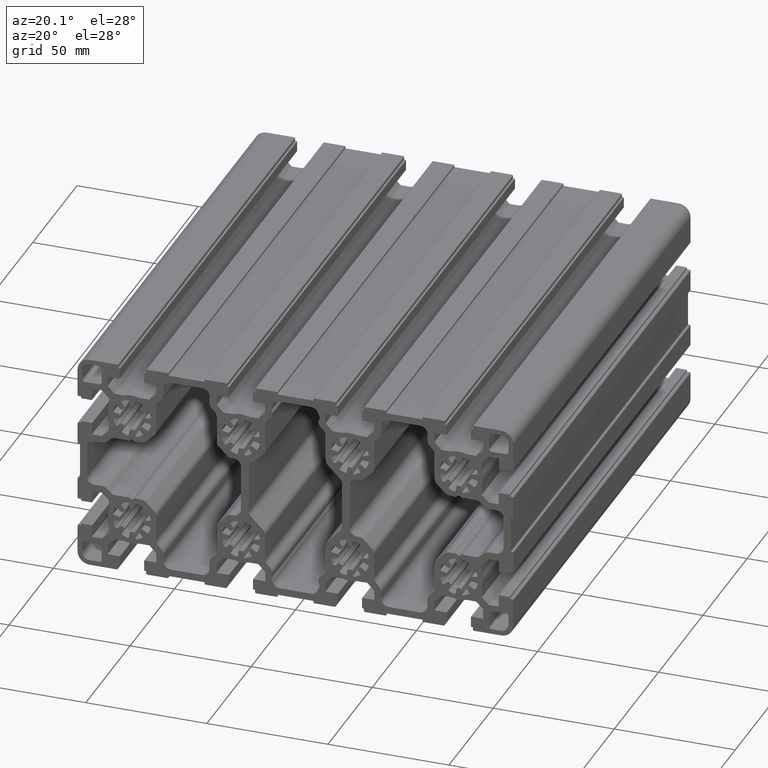
[diagram: clean part render]
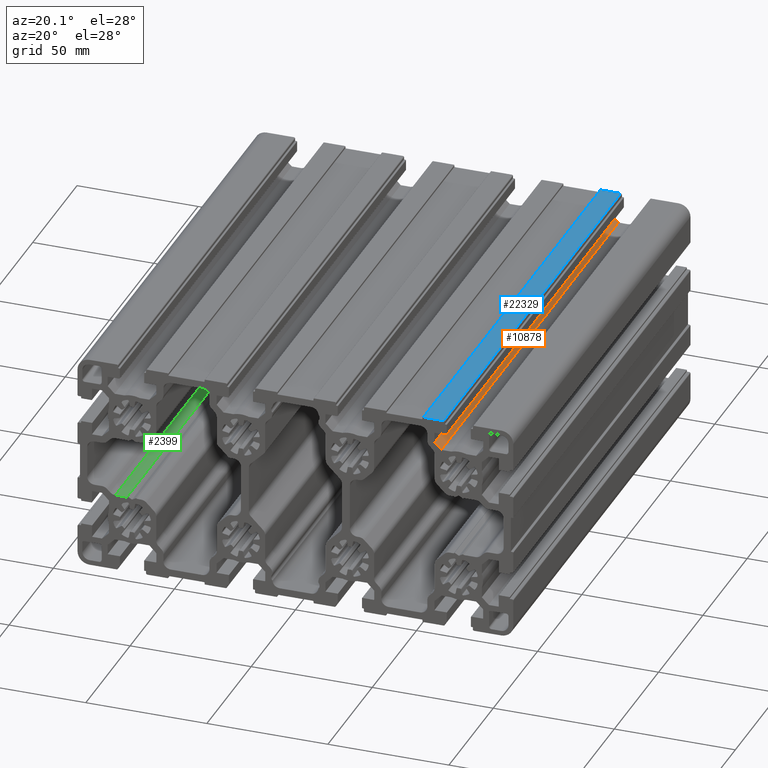
[diagram: same view with three faces highlighted in distinct colors, each labeled with its STEP entity id]
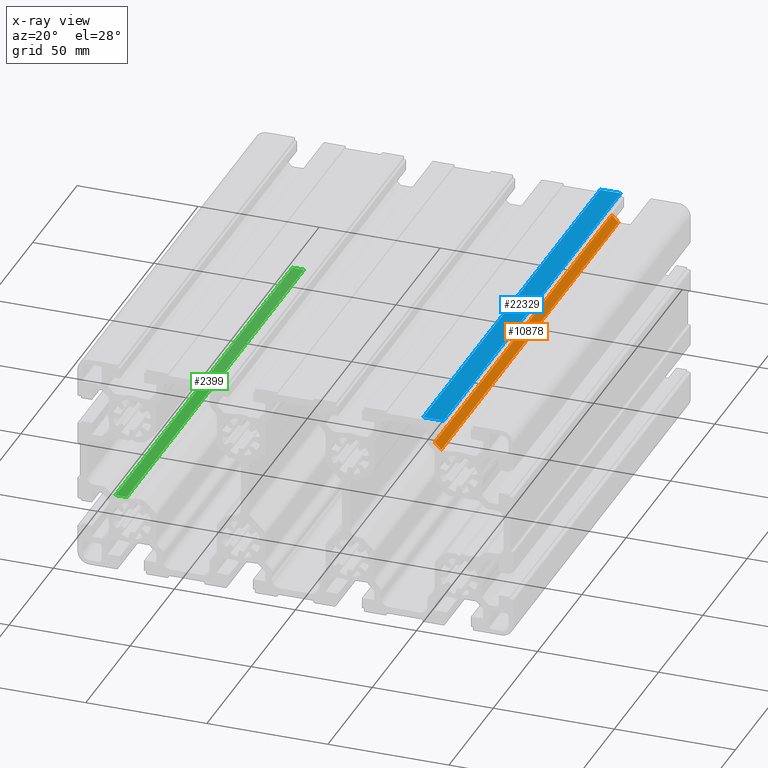
[diagram: x-ray of the same camera — body ghosted, the three highlighted faces saturated]
A machine part, auxiliary view with three faces highlighted in distinct colors.
The next image is the same camera in x-ray (body ghosted, the three faces saturated) — at least one of them is partly hidden behind the body in this view.
Their STEP definitions:

[orange] entity #10878 — the highlighted planar face has unit normal (0.7071, -0, 0.7071).
#692 = ORIENTED_EDGE ( 'NONE', *, *, #9807, .T. ) ;
#1874 = CARTESIAN_POINT ( 'NONE',  ( 57.50857864376262500, 0.0000000000000000000, 34.82487373415277400 ) ) ;
#2531 = CARTESIAN_POINT ( 'NONE',  ( 57.50857864376259700, 0.0000000000000000000, 34.82487373415280300 ) ) ;
#5668 = VERTEX_POINT ( 'NONE', #1874 ) ;
#9807 = EDGE_CURVE ( 'NONE', #26904, #19057, #29485, .T. ) ;
#10484 = EDGE_LOOP ( 'NONE', ( #32046, #692, #18143, #20376 ) ) ;
#10624 = CARTESIAN_POINT ( 'NONE',  ( 57.50857864376262500, 200.0000000000000000, 34.82487373415277400 ) ) ;
#10659 = VECTOR ( 'NONE', #17378, 1000.000000000000000 ) ;
#10878 = ADVANCED_FACE ( 'NONE', ( #11793 ), #12242, .T. ) ;
#11203 = VERTEX_POINT ( 'NONE', #10624 ) ;
#11793 = FACE_OUTER_BOUND ( 'NONE', #10484, .T. ) ;
#12242 = PLANE ( 'NONE',  #31401 ) ;
#13588 = DIRECTION ( 'NONE',  ( 0.0000000000000000000, 1.000000000000000000, 0.0000000000000000000 ) ) ;
#14198 = CARTESIAN_POINT ( 'NONE',  ( 57.50857864376259700, 0.0000000000000000000, 34.82487373415280300 ) ) ;
#14732 = CARTESIAN_POINT ( 'NONE',  ( 57.50857864376259700, 200.0000000000000000, 34.82487373415280300 ) ) ;
#16880 = LINE ( 'NONE', #14198, #10659 ) ;
#16969 = LINE ( 'NONE', #2531, #21118 ) ;
#17378 = DIRECTION ( 'NONE',  ( 0.7071067811865730000, 0.0000000000000000000, -0.7071067811865220400 ) ) ;
#18143 = ORIENTED_EDGE ( 'NONE', *, *, #40166, .F. ) ;
#19057 = VERTEX_POINT ( 'NONE', #25586 ) ;
#20376 = ORIENTED_EDGE ( 'NONE', *, *, #35084, .T. ) ;
#21118 = VECTOR ( 'NONE', #42231, 1000.000000000000000 ) ;
#25586 = CARTESIAN_POINT ( 'NONE',  ( 60.27487373415289800, 200.0000000000000000, 32.05857864376270100 ) ) ;
#26085 = LINE ( 'NONE', #14732, #28176 ) ;
#26904 = VERTEX_POINT ( 'NONE', #30715 ) ;
#28176 = VECTOR ( 'NONE', #38006, 1000.000000000000000 ) ;
#28477 = CARTESIAN_POINT ( 'NONE',  ( 57.50857864376259700, 0.0000000000000000000, 34.82487373415280300 ) ) ;
#29137 = EDGE_CURVE ( 'NONE', #5668, #26904, #16880, .T. ) ;
#29485 = LINE ( 'NONE', #29544, #38893 ) ;
#29544 = CARTESIAN_POINT ( 'NONE',  ( 60.27487373415289800, 0.0000000000000000000, 32.05857864376270100 ) ) ;
#30715 = CARTESIAN_POINT ( 'NONE',  ( 60.27487373415289800, 0.0000000000000000000, 32.05857864376270100 ) ) ;
#31401 = AXIS2_PLACEMENT_3D ( 'NONE', #28477, #31841, #35484 ) ;
#31841 = DIRECTION ( 'NONE',  ( 0.7071067811865220400, -0.0000000000000000000, 0.7071067811865730000 ) ) ;
#32046 = ORIENTED_EDGE ( 'NONE', *, *, #29137, .T. ) ;
#35084 = EDGE_CURVE ( 'NONE', #11203, #5668, #16969, .T. ) ;
#35484 = DIRECTION ( 'NONE',  ( 0.7071067811865730000, 0.0000000000000000000, -0.7071067811865220400 ) ) ;
#38006 = DIRECTION ( 'NONE',  ( 0.7071067811865732200, 0.0000000000000000000, -0.7071067811865218200 ) ) ;
#38893 = VECTOR ( 'NONE', #13588, 1000.000000000000000 ) ;
#40166 = EDGE_CURVE ( 'NONE', #11203, #19057, #26085, .T. ) ;
#42231 = DIRECTION ( 'NONE',  ( -0.0000000000000000000, -1.000000000000000000, -0.0000000000000000000 ) ) ;

[blue] entity #22329 — the highlighted planar face has unit normal (-0, 0, 1).
#835 = CARTESIAN_POINT ( 'NONE',  ( 8.881784197001250700E-015, 200.0000000000000000, 45.00000000000000000 ) ) ;
#920 = VECTOR ( 'NONE', #8093, 1000.000000000000000 ) ;
#2753 = VERTEX_POINT ( 'NONE', #38414 ) ;
#3927 = CARTESIAN_POINT ( 'NONE',  ( 61.20000000000000300, 0.0000000000000000000, 45.00000000000000700 ) ) ;
#6059 = EDGE_CURVE ( 'NONE', #34863, #2753, #25826, .T. ) ;
#6434 = CARTESIAN_POINT ( 'NONE',  ( 52.79999999999999700, 0.0000000000000000000, 45.00000000000000000 ) ) ;
#6878 = EDGE_CURVE ( 'NONE', #40988, #2753, #34170, .T. ) ;
#7309 = FACE_OUTER_BOUND ( 'NONE', #41863, .T. ) ;
#8093 = DIRECTION ( 'NONE',  ( 1.000000000000000000, 0.0000000000000000000, -0.0000000000000000000 ) ) ;
#8792 = DIRECTION ( 'NONE',  ( 0.0000000000000000000, 1.000000000000000000, -0.0000000000000000000 ) ) ;
#9952 = DIRECTION ( 'NONE',  ( 1.000000000000000000, 0.0000000000000000000, 1.057355261547770100E-015 ) ) ;
#13764 = ORIENTED_EDGE ( 'NONE', *, *, #15919, .T. ) ;
#14737 = AXIS2_PLACEMENT_3D ( 'NONE', #19728, #23098, #26419 ) ;
#15919 = EDGE_CURVE ( 'NONE', #40988, #22212, #25534, .T. ) ;
#16620 = CARTESIAN_POINT ( 'NONE',  ( 52.79999999999999700, 0.0000000000000000000, 45.00000000000000000 ) ) ;
#16975 = ORIENTED_EDGE ( 'NONE', *, *, #6059, .T. ) ;
#18769 = CARTESIAN_POINT ( 'NONE',  ( 61.20000000000000300, 0.0000000000000000000, 45.00000000000000700 ) ) ;
#19728 = CARTESIAN_POINT ( 'NONE',  ( 52.79999999999999700, 0.0000000000000000000, 45.00000000000000000 ) ) ;
#20899 = PLANE ( 'NONE',  #14737 ) ;
#22212 = VERTEX_POINT ( 'NONE', #6434 ) ;
#22329 = ADVANCED_FACE ( 'NONE', ( #7309 ), #20899, .T. ) ;
#23098 = DIRECTION ( 'NONE',  ( -1.057355261547770100E-015, 0.0000000000000000000, 1.000000000000000000 ) ) ;
#23250 = EDGE_CURVE ( 'NONE', #22212, #34863, #43102, .T. ) ;
#23567 = ORIENTED_EDGE ( 'NONE', *, *, #23250, .T. ) ;
#24625 = ORIENTED_EDGE ( 'NONE', *, *, #6878, .F. ) ;
#25534 = LINE ( 'NONE', #36623, #34963 ) ;
#25826 = LINE ( 'NONE', #18769, #28973 ) ;
#26419 = DIRECTION ( 'NONE',  ( 1.000000000000000000, 0.0000000000000000000, 1.057355261547770100E-015 ) ) ;
#26470 = DIRECTION ( 'NONE',  ( -0.0000000000000000000, -1.000000000000000000, 0.0000000000000000000 ) ) ;
#28276 = CARTESIAN_POINT ( 'NONE',  ( 52.79999999999999700, 200.0000000000000000, 45.00000000000000000 ) ) ;
#28508 = VECTOR ( 'NONE', #9952, 1000.000000000000000 ) ;
#28973 = VECTOR ( 'NONE', #8792, 1000.000000000000000 ) ;
#34170 = LINE ( 'NONE', #835, #920 ) ;
#34863 = VERTEX_POINT ( 'NONE', #3927 ) ;
#34963 = VECTOR ( 'NONE', #26470, 1000.000000000000000 ) ;
#36623 = CARTESIAN_POINT ( 'NONE',  ( 52.79999999999999700, 0.0000000000000000000, 45.00000000000000000 ) ) ;
#38414 = CARTESIAN_POINT ( 'NONE',  ( 61.20000000000000300, 200.0000000000000000, 45.00000000000000000 ) ) ;
#40988 = VERTEX_POINT ( 'NONE', #28276 ) ;
#41863 = EDGE_LOOP ( 'NONE', ( #23567, #16975, #24625, #13764 ) ) ;
#43102 = LINE ( 'NONE', #16620, #28508 ) ;

[green] entity #2399 — the highlighted planar face has unit normal (0, 0, -1).
#1864 = ORIENTED_EDGE ( 'NONE', *, *, #33114, .F. ) ;
#2399 = ADVANCED_FACE ( 'NONE', ( #23054 ), #12103, .F. ) ;
#3573 = VERTEX_POINT ( 'NONE', #9821 ) ;
#5957 = DIRECTION ( 'NONE',  ( 1.000000000000000000, 0.0000000000000000000, -0.0000000000000000000 ) ) ;
#7381 = VECTOR ( 'NONE', #23836, 1000.000000000000000 ) ;
#7892 = VERTEX_POINT ( 'NONE', #31562 ) ;
#8427 = CARTESIAN_POINT ( 'NONE',  ( -74.41888168179539800, 0.0000000000000000000, -12.50000000000020300 ) ) ;
#8446 = AXIS2_PLACEMENT_3D ( 'NONE', #12265, #29676, #9786 ) ;
#9786 = DIRECTION ( 'NONE',  ( -1.000000000000000000, 0.0000000000000000000, -4.206100924447149800E-014 ) ) ;
#9821 = CARTESIAN_POINT ( 'NONE',  ( -69.61489352004349500, 0.0000000000000000000, -12.50000000000010100 ) ) ;
#12103 = PLANE ( 'NONE',  #8446 ) ;
#12265 = CARTESIAN_POINT ( 'NONE',  ( -69.61489352004349500, 0.0000000000000000000, -12.50000000000000000 ) ) ;
#13525 = DIRECTION ( 'NONE',  ( -0.0000000000000000000, -1.000000000000000000, -0.0000000000000000000 ) ) ;
#13576 = LINE ( 'NONE', #8427, #29131 ) ;
#15599 = ORIENTED_EDGE ( 'NONE', *, *, #20560, .F. ) ;
#16991 = EDGE_CURVE ( 'NONE', #3573, #39177, #33878, .T. ) ;
#17319 = LINE ( 'NONE', #33841, #38184 ) ;
#18202 = ORIENTED_EDGE ( 'NONE', *, *, #16991, .F. ) ;
#18268 = DIRECTION ( 'NONE',  ( 0.0000000000000000000, 1.000000000000000000, 0.0000000000000000000 ) ) ;
#20199 = CARTESIAN_POINT ( 'NONE',  ( 8.881784197001250700E-015, 0.0000000000000000000, -12.50000000000020100 ) ) ;
#20560 = EDGE_CURVE ( 'NONE', #24856, #3573, #17319, .T. ) ;
#20740 = LINE ( 'NONE', #26217, #33783 ) ;
#23054 = FACE_OUTER_BOUND ( 'NONE', #33025, .T. ) ;
#23836 = DIRECTION ( 'NONE',  ( -1.000000000000000000, -0.0000000000000000000, 0.0000000000000000000 ) ) ;
#24856 = VERTEX_POINT ( 'NONE', #32363 ) ;
#26217 = CARTESIAN_POINT ( 'NONE',  ( 8.881784197001250700E-015, 200.0000000000000000, -12.50000000000020100 ) ) ;
#28736 = CARTESIAN_POINT ( 'NONE',  ( -74.41888168179539800, 0.0000000000000000000, -12.50000000000020300 ) ) ;
#29131 = VECTOR ( 'NONE', #18268, 1000.000000000000000 ) ;
#29676 = DIRECTION ( 'NONE',  ( 4.206100924447149800E-014, 0.0000000000000000000, -1.000000000000000000 ) ) ;
#31562 = CARTESIAN_POINT ( 'NONE',  ( -74.41888168179539800, 200.0000000000000000, -12.50000000000020300 ) ) ;
#32363 = CARTESIAN_POINT ( 'NONE',  ( -69.61489352004349500, 200.0000000000000000, -12.50000000000010100 ) ) ;
#33025 = EDGE_LOOP ( 'NONE', ( #39227, #18202, #15599, #1864 ) ) ;
#33114 = EDGE_CURVE ( 'NONE', #7892, #24856, #20740, .T. ) ;
#33783 = VECTOR ( 'NONE', #5957, 1000.000000000000000 ) ;
#33841 = CARTESIAN_POINT ( 'NONE',  ( -69.61489352004349500, 0.0000000000000000000, -12.50000000000000000 ) ) ;
#33878 = LINE ( 'NONE', #20199, #7381 ) ;
#38184 = VECTOR ( 'NONE', #13525, 1000.000000000000000 ) ;
#39069 = EDGE_CURVE ( 'NONE', #39177, #7892, #13576, .T. ) ;
#39177 = VERTEX_POINT ( 'NONE', #28736 ) ;
#39227 = ORIENTED_EDGE ( 'NONE', *, *, #39069, .F. ) ;